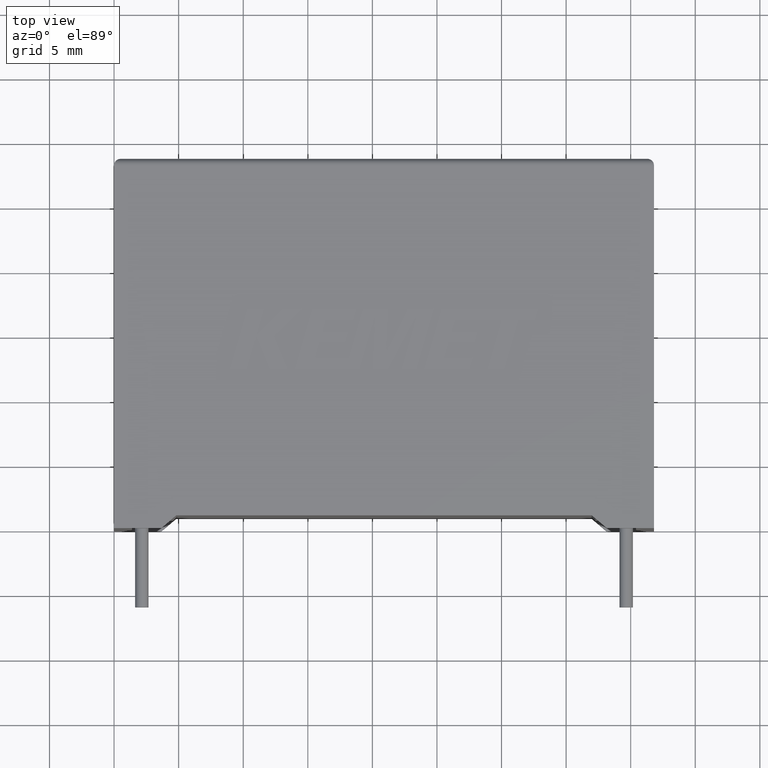
[diagram: clean part render]
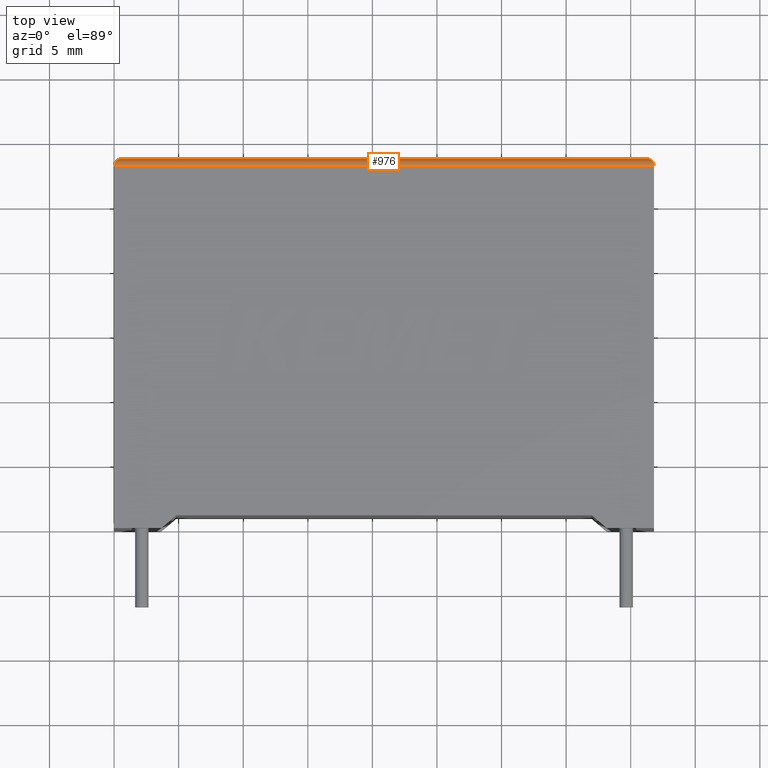
[diagram: same view with one face highlighted and labeled with its STEP entity id]
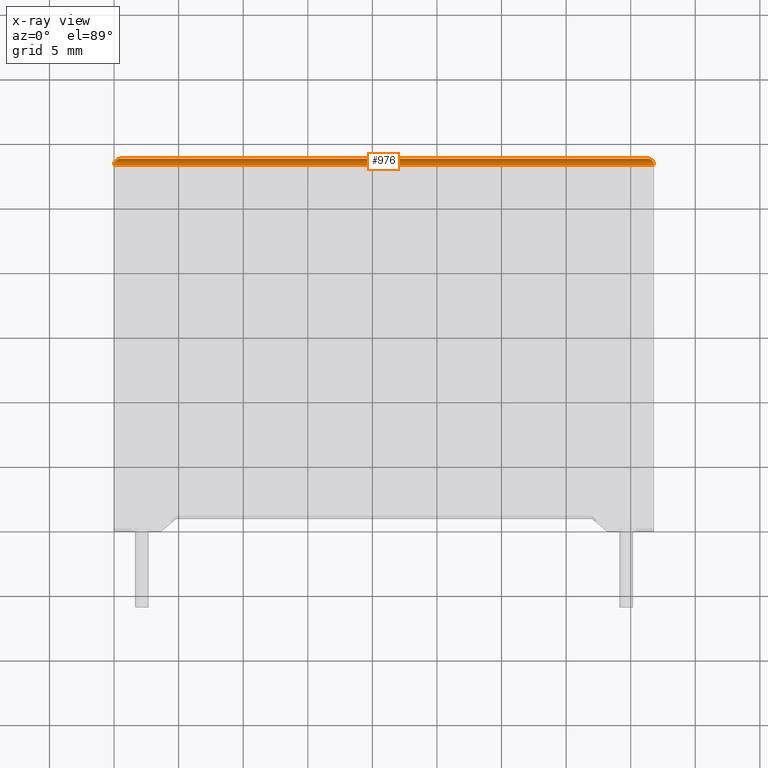
[diagram: x-ray of the same camera — body ghosted, the highlighted face saturated]
A machine part, top view. The second image highlights one B-rep face of the part: STEP entity #976.
The next image is the same camera in x-ray: the body ghosted, the highlighted face saturated — about 0% of this face is hidden behind the body in this view.
In plain terms, the highlighted cylindrical surface (edge-blend (fillet) strip) has radius 0.5 mm, axis along (-1, 0, 0).
Its self-contained STEP definition (entity closure, byte-faithful):
#41 = DIRECTION ( 'NONE',  ( -1.000000000000000000, 0.000000000000000000, 0.000000000000000000 ) ) ;
#46 = ORIENTED_EDGE ( 'NONE', *, *, #1883, .F. ) ;
#54 = CARTESIAN_POINT ( 'NONE',  ( 0.000000000000000000, 28.10000000000000142, 16.19999999999999929 ) ) ;
#199 = CARTESIAN_POINT ( 'NONE',  ( 41.79999999999999716, 28.39289321881345174, 16.19999999999999929 ) ) ;
#349 = LINE ( 'NONE', #1014, #1571 ) ;
#432 = CARTESIAN_POINT ( 'NONE',  ( 0.000000000000000000, 28.10000000000000142, 16.19999999999999929 ) ) ;
#503 = ORIENTED_EDGE ( 'NONE', *, *, #2662, .T. ) ;
#516 = VERTEX_POINT ( 'NONE', #432 ) ;
#606 = CARTESIAN_POINT ( 'NONE',  ( 0.5000000000000000000, 28.60000000000000142, 15.69999999999999929 ) ) ;
#646 = CARTESIAN_POINT ( 'NONE',  ( 0.2071067811865475727, 28.59999999999999787, 15.99289321881345138 ) ) ;
#680 = EDGE_CURVE ( 'NONE', #516, #1389, #1482, .T. ) ;
#906 = CARTESIAN_POINT ( 'NONE',  ( 41.59289321881344392, 28.59999999999999787, 15.99289321881345138 ) ) ;
#976 = ADVANCED_FACE ( 'NONE', ( #2375 ), #1241, .T. ) ;
#1014 = CARTESIAN_POINT ( 'NONE',  ( 0.000000000000000000, 28.60000000000000142, 15.69999999999999929 ) ) ;
#1035 = ORIENTED_EDGE ( 'NONE', *, *, #2522, .F. ) ;
#1173 = ORIENTED_EDGE ( 'NONE', *, *, #680, .F. ) ;
#1204 = CARTESIAN_POINT ( 'NONE',  ( 41.29999999999999716, 28.60000000000000142, 15.69999999999999929 ) ) ;
#1241 = CYLINDRICAL_SURFACE ( 'NONE', #2294, 0.5000000000000004441 ) ;
#1291 = DIRECTION ( 'NONE',  ( 0.000000000000000000, 0.000000000000000000, 1.000000000000000000 ) ) ;
#1310 = DIRECTION ( 'NONE',  ( 1.000000000000000000, -0.000000000000000000, -0.000000000000000000 ) ) ;
#1343 = EDGE_LOOP ( 'NONE', ( #503, #1035, #1173, #46 ) ) ;
#1367 = CARTESIAN_POINT ( 'NONE',  ( 41.79999999999999716, 28.10000000000000142, 16.19999999999999929 ) ) ;
#1387 = CARTESIAN_POINT ( 'NONE',  ( 41.29999999999999716, 28.60000000000000142, 15.69999999999999929 ) ) ;
#1389 = VERTEX_POINT ( 'NONE', #1686 ) ;
#1453 = VERTEX_POINT ( 'NONE', #1204 ) ;
#1482 =( BOUNDED_CURVE ( )  B_SPLINE_CURVE ( 3, ( #2486, #2705, #646, #606 ),
 .UNSPECIFIED., .F., .F. ) 
 B_SPLINE_CURVE_WITH_KNOTS ( ( 4, 4 ),
 ( 0.000000000000000000, 1.570796326794896558 ),
 .UNSPECIFIED. ) 
 CURVE ( )  GEOMETRIC_REPRESENTATION_ITEM ( )  RATIONAL_B_SPLINE_CURVE ( ( 1.000000000000000000, 0.8047378541243649375, 0.8047378541243649375, 1.000000000000000000 ) ) 
 REPRESENTATION_ITEM ( '' )  );
#1497 = LINE ( 'NONE', #54, #2353 ) ;
#1552 = CARTESIAN_POINT ( 'NONE',  ( 0.000000000000000000, 28.10000000000000142, 15.69999999999999929 ) ) ;
#1571 = VECTOR ( 'NONE', #1310, 1000.000000000000000 ) ;
#1686 = CARTESIAN_POINT ( 'NONE',  ( 0.5000000000000000000, 28.60000000000000142, 15.69999999999999929 ) ) ;
#1778 =( BOUNDED_CURVE ( )  B_SPLINE_CURVE ( 3, ( #1367, #199, #906, #1387 ),
 .UNSPECIFIED., .F., .F. ) 
 B_SPLINE_CURVE_WITH_KNOTS ( ( 4, 4 ),
 ( 3.141592653589793116, 4.712388980384689674 ),
 .UNSPECIFIED. ) 
 CURVE ( )  GEOMETRIC_REPRESENTATION_ITEM ( )  RATIONAL_B_SPLINE_CURVE ( ( 1.000000000000000000, 0.8047378541243649375, 0.8047378541243649375, 1.000000000000000000 ) ) 
 REPRESENTATION_ITEM ( '' )  );
#1882 = CARTESIAN_POINT ( 'NONE',  ( 41.79999999999999716, 28.10000000000000142, 16.19999999999999929 ) ) ;
#1883 = EDGE_CURVE ( 'NONE', #2346, #516, #1497, .T. ) ;
#2294 = AXIS2_PLACEMENT_3D ( 'NONE', #1552, #2482, #1291 ) ;
#2346 = VERTEX_POINT ( 'NONE', #1882 ) ;
#2353 = VECTOR ( 'NONE', #41, 1000.000000000000000 ) ;
#2375 = FACE_OUTER_BOUND ( 'NONE', #1343, .T. ) ;
#2482 = DIRECTION ( 'NONE',  ( -1.000000000000000000, 0.000000000000000000, 0.000000000000000000 ) ) ;
#2486 = CARTESIAN_POINT ( 'NONE',  ( 0.000000000000000000, 28.10000000000000142, 16.19999999999999929 ) ) ;
#2522 = EDGE_CURVE ( 'NONE', #1389, #1453, #349, .T. ) ;
#2662 = EDGE_CURVE ( 'NONE', #2346, #1453, #1778, .T. ) ;
#2705 = CARTESIAN_POINT ( 'NONE',  ( 1.084202172485504434E-16, 28.39289321881345174, 16.19999999999999929 ) ) ;